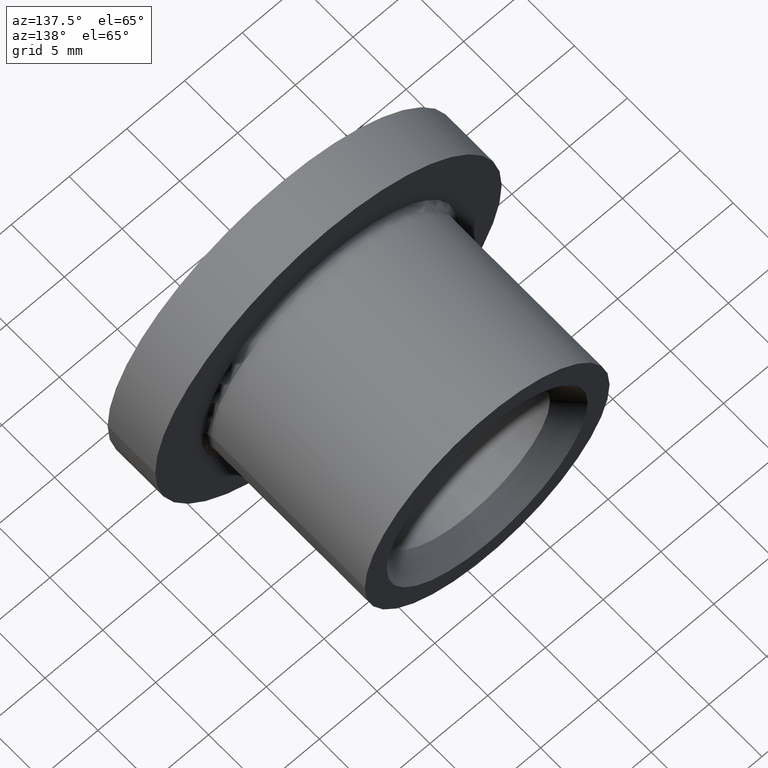
[diagram: clean part render]
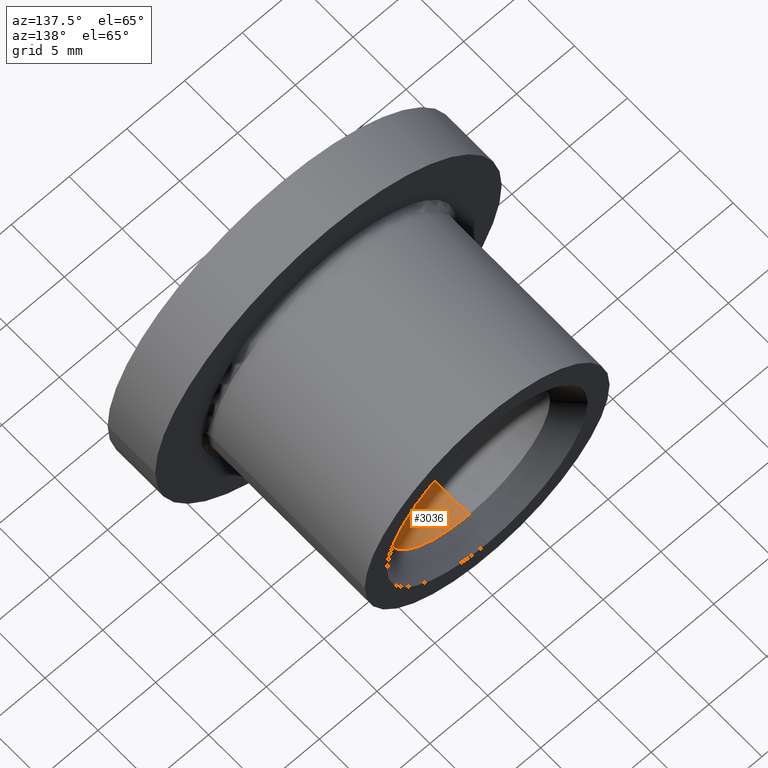
[diagram: same view with one face highlighted and labeled with its STEP entity id]
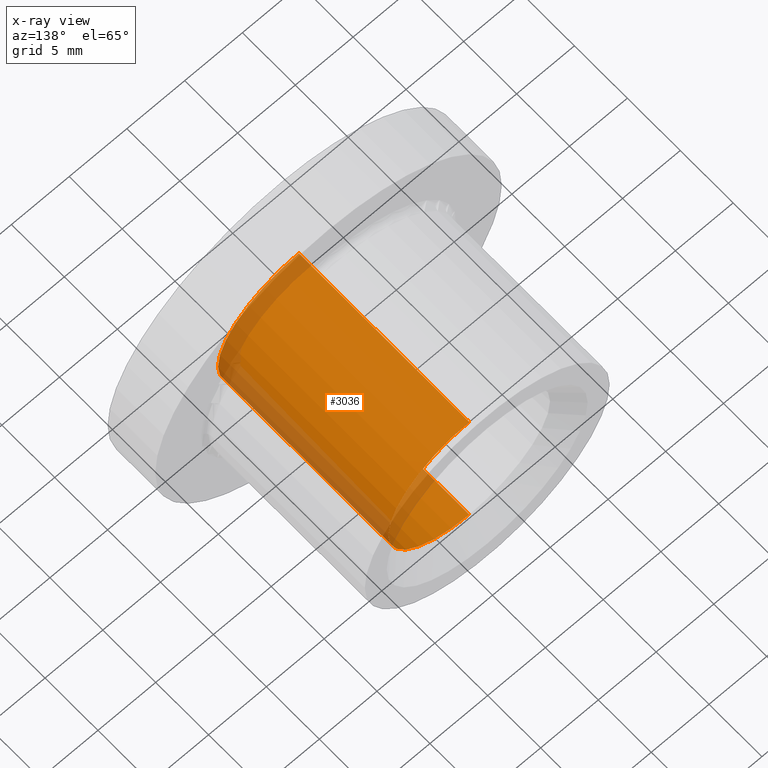
[diagram: x-ray of the same camera — body ghosted, the highlighted face saturated]
A machine part, auxiliary view. The second image highlights one B-rep face of the part: STEP entity #3036.
The next image is the same camera in x-ray: the body ghosted, the highlighted face saturated — about 21% of this face is hidden behind the body in this view.
In plain terms, the highlighted cylindrical surface (partial cylindrical patch) has radius 7 mm, axis along (-0, 1, -0).
Its self-contained STEP definition (entity closure, byte-faithful):
#521 = CARTESIAN_POINT ( 'NONE',  ( 2.449293598294700000E-016, 17.80000000000000800, -6.999999999999998200 ) ) ;
#570 = DIRECTION ( 'NONE',  ( -0.0000000000000000000, 1.000000000000000000, -0.0000000000000000000 ) ) ;
#597 = AXIS2_PLACEMENT_3D ( 'NONE', #1645, #570, #5393 ) ;
#742 = ORIENTED_EDGE ( 'NONE', *, *, #5641, .F. ) ;
#810 = VERTEX_POINT ( 'NONE', #7049 ) ;
#1268 = LINE ( 'NONE', #4440, #9269 ) ;
#1538 = DIRECTION ( 'NONE',  ( -0.0000000000000000000, 1.000000000000000000, -0.0000000000000000000 ) ) ;
#1645 = CARTESIAN_POINT ( 'NONE',  ( -6.123233995736770200E-016, 19.50000000000000400, 0.0000000000000000000 ) ) ;
#2312 = EDGE_CURVE ( 'NONE', #3980, #810, #1268, .T. ) ;
#2508 = ORIENTED_EDGE ( 'NONE', *, *, #2312, .T. ) ;
#2712 = DIRECTION ( 'NONE',  ( 0.0000000000000000000, 0.0000000000000000000, 1.000000000000000000 ) ) ;
#2724 = FACE_OUTER_BOUND ( 'NONE', #11041, .T. ) ;
#2837 = AXIS2_PLACEMENT_3D ( 'NONE', #11865, #1538, #3342 ) ;
#3036 = ADVANCED_FACE ( 'NONE', ( #2724 ), #5997, .F. ) ;
#3342 = DIRECTION ( 'NONE',  ( 0.0000000000000000000, 0.0000000000000000000, 1.000000000000000000 ) ) ;
#3940 = LINE ( 'NONE', #10878, #6335 ) ;
#3980 = VERTEX_POINT ( 'NONE', #11185 ) ;
#4440 = CARTESIAN_POINT ( 'NONE',  ( -6.123233995736770200E-016, 19.50000000000000400, 6.999999999999996400 ) ) ;
#4615 = DIRECTION ( 'NONE',  ( -0.0000000000000000000, 1.000000000000000000, -0.0000000000000000000 ) ) ;
#4829 = CIRCLE ( 'NONE', #5178, 6.999999999999995600 ) ;
#5178 = AXIS2_PLACEMENT_3D ( 'NONE', #10784, #4615, #2712 ) ;
#5186 = DIRECTION ( 'NONE',  ( -0.0000000000000000000, 1.000000000000000000, -0.0000000000000000000 ) ) ;
#5393 = DIRECTION ( 'NONE',  ( 0.0000000000000000000, 0.0000000000000000000, 1.000000000000000000 ) ) ;
#5398 = CIRCLE ( 'NONE', #2837, 6.999999999999997300 ) ;
#5641 = EDGE_CURVE ( 'NONE', #9634, #6838, #3940, .T. ) ;
#5997 = CYLINDRICAL_SURFACE ( 'NONE', #597, 6.999999999999996400 ) ;
#6335 = VECTOR ( 'NONE', #5186, 1000.000000000000000 ) ;
#6692 = ORIENTED_EDGE ( 'NONE', *, *, #9519, .T. ) ;
#6838 = VERTEX_POINT ( 'NONE', #521 ) ;
#7049 = CARTESIAN_POINT ( 'NONE',  ( -6.123233995736770200E-016, 17.80000000000000800, 6.999999999999997300 ) ) ;
#8231 = EDGE_CURVE ( 'NONE', #3980, #9634, #4829, .T. ) ;
#9269 = VECTOR ( 'NONE', #10047, 1000.000000000000000 ) ;
#9491 = CARTESIAN_POINT ( 'NONE',  ( -6.123233995736770200E-016, 1.700000000000007100, -6.999999999999995600 ) ) ;
#9519 = EDGE_CURVE ( 'NONE', #810, #6838, #5398, .T. ) ;
#9634 = VERTEX_POINT ( 'NONE', #9491 ) ;
#10047 = DIRECTION ( 'NONE',  ( -0.0000000000000000000, 1.000000000000000000, -0.0000000000000000000 ) ) ;
#10784 = CARTESIAN_POINT ( 'NONE',  ( -6.123233995736770200E-016, 1.700000000000007100, 0.0000000000000000000 ) ) ;
#10878 = CARTESIAN_POINT ( 'NONE',  ( 2.449293598294698000E-016, 19.50000000000000400, -6.999999999999996400 ) ) ;
#10979 = ORIENTED_EDGE ( 'NONE', *, *, #8231, .F. ) ;
#11041 = EDGE_LOOP ( 'NONE', ( #742, #10979, #2508, #6692 ) ) ;
#11185 = CARTESIAN_POINT ( 'NONE',  ( 3.490243377569946700E-016, 1.700000000000007100, 6.999999999999995600 ) ) ;
#11865 = CARTESIAN_POINT ( 'NONE',  ( -6.123233995736770200E-016, 17.80000000000000800, 0.0000000000000000000 ) ) ;